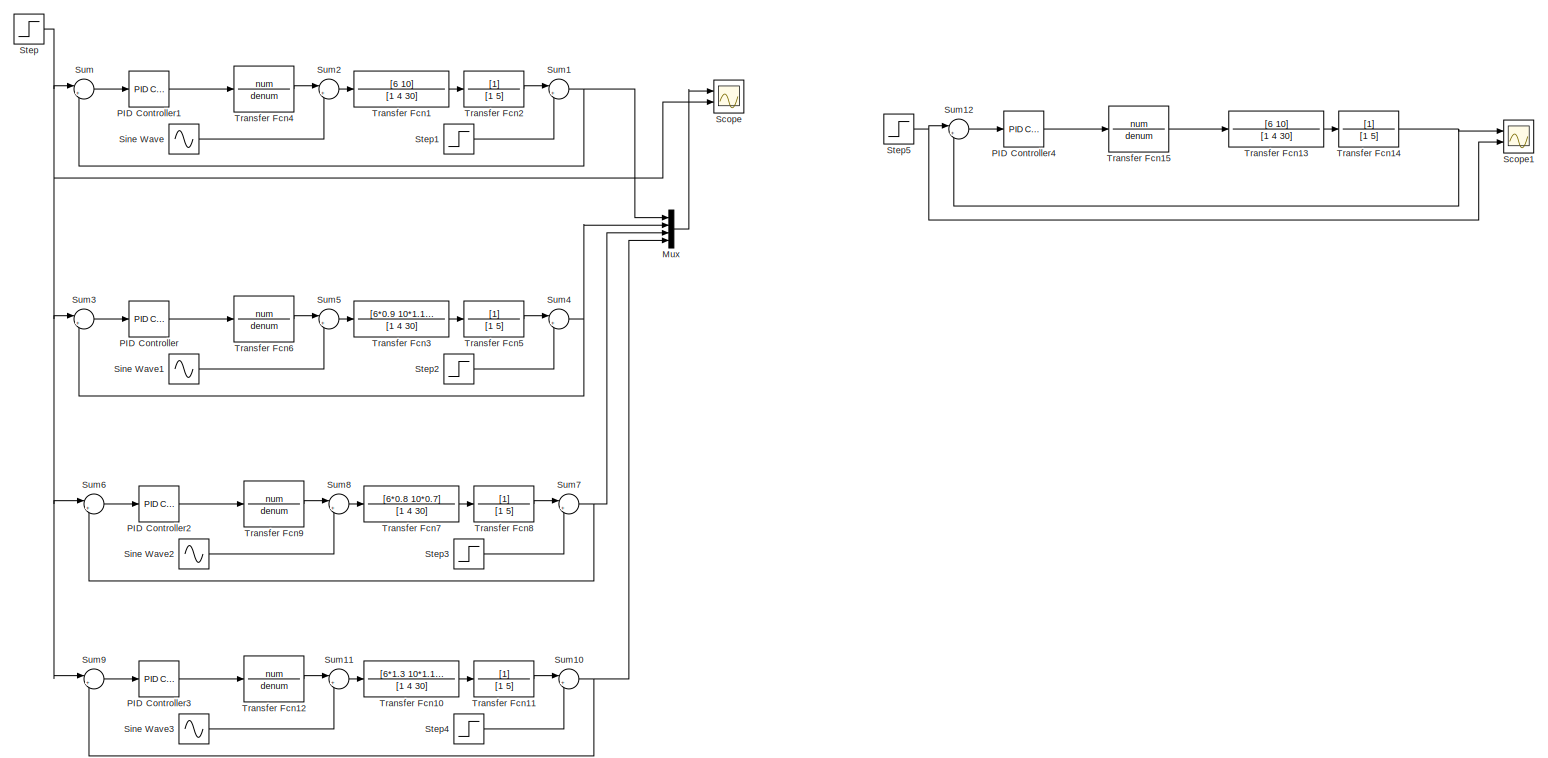
[diagram: root canvas - part 1/1, most of the canvas]
MODEL slx_10db6c4a6d08
KIND model
CONFIG AbsTol = auto
CONFIG EnableMultiTasking = off
CONFIG FixedStep = 1e-3
CONFIG MaxStep = auto
CONFIG MinStep = auto
CONFIG RelTol = 1e-3
CONFIG SampleTimeConstraint = Unconstrained
CONFIG SolverName = VariableStepAuto
CONFIG StartTime = 0.0
CONFIG StopTime = 5
BLOCK [Mux] Mux
  DisplayOption = bar
  Ports = [4, 1]
BLOCK [Reference] PID Controller  REF=slpidlib/PID Controller
  Ports = [1, 1]
  SourceBlock = slpidlib/PID Controller
  SourceProductBaseCode = SL
  SourceType = PID 1dof
BLOCK [Reference] PID Controller1  REF=slpidlib/PID Controller
  Ports = [1, 1]
  SourceBlock = slpidlib/PID Controller
  SourceProductBaseCode = SL
  SourceType = PID 1dof
BLOCK [Reference] PID Controller2  REF=slpidlib/PID Controller
  Ports = [1, 1]
  SourceBlock = slpidlib/PID Controller
  SourceProductBaseCode = SL
  SourceType = PID 1dof
BLOCK [Reference] PID Controller3  REF=slpidlib/PID Controller
  Ports = [1, 1]
  SourceBlock = slpidlib/PID Controller
  SourceProductBaseCode = SL
  SourceType = PID 1dof
BLOCK [Reference] PID Controller4  REF=slpidlib/PID Controller
  Ports = [1, 1]
  SourceBlock = slpidlib/PID Controller
  SourceProductBaseCode = SL
  SourceType = PID 1dof
BLOCK [Scope] Scope
  Floating = off
  NumInputPorts = 2
  Ports = [2]
  ScopeSpecificationString = Simulink.scopes.TimeScopeBlockCfg('CurrentConfiguration', extmgr.ConfigurationSet(extmgr.Configuration('Core','General UI',true,'FigureColor',[1 1 1]),extmgr.Configuration('Core','Source UI',true),extmgr.Configuration('Sources','WiredSimulink',true),extmgr.Configuration('Visuals','Time Domain',true,'SerializedDisplays',{struct('MinYLimReal','-0.0625','MaxYLimReal','0.5625','YLabelReal','','MinYLim...<+1908ch>
BLOCK [Scope] Scope1
  Floating = off
  NumInputPorts = 2
  Ports = [2]
  ScopeSpecificationString = Simulink.scopes.TimeScopeBlockCfg('CurrentConfiguration', extmgr.ConfigurationSet(extmgr.Configuration('Core','General UI',true,'FigureColor',[1 1 1]),extmgr.Configuration('Core','Source UI',true),extmgr.Configuration('Sources','WiredSimulink',true,'DataLoggingVariableName','ScopeData1'),extmgr.Configuration('Visuals','Time Domain',true,'SerializedDisplays',{struct('MinYLimReal','-0.06288','MaxYLi...<+1942ch>
BLOCK [Sin] Sine Wave
  Amplitude = 0.1
  Frequency = 0.5
  Ports = [0, 1]
  SampleTime = 0
BLOCK [Sin] Sine Wave1
  Amplitude = 0.1
  Frequency = 0.5
  Ports = [0, 1]
  SampleTime = 0
BLOCK [Sin] Sine Wave2
  Amplitude = 0.1
  Frequency = 0.5
  Ports = [0, 1]
  SampleTime = 0
BLOCK [Sin] Sine Wave3
  Amplitude = 0.1
  Frequency = 0.5
  Ports = [0, 1]
  SampleTime = 0
BLOCK [Step] Step
  After = 0.5
  SampleTime = 0
  Time = 0
BLOCK [Step] Step1
  After = v
  SampleTime = 0
  Time = 0
BLOCK [Step] Step2
  After = v
  SampleTime = 0
  Time = 0
BLOCK [Step] Step3
  After = v
  SampleTime = 0
  Time = 0
BLOCK [Step] Step4
  After = v
  SampleTime = 0
  Time = 0
BLOCK [Step] Step5
  After = 0.5
  SampleTime = 0
  Time = 0
BLOCK [Sum] Sum
  Inputs = |+-
  Ports = [2, 1]
BLOCK [Sum] Sum1
  Inputs = |++
  Ports = [2, 1]
BLOCK [Sum] Sum10
  Inputs = |++
  Ports = [2, 1]
BLOCK [Sum] Sum11
  Inputs = |++
  NameLocation = top
  Ports = [2, 1]
BLOCK [Sum] Sum12
  Inputs = |+-
  Ports = [2, 1]
BLOCK [Sum] Sum2
  Inputs = |++
  NameLocation = top
  Ports = [2, 1]
BLOCK [Sum] Sum3
  Inputs = |+-
  Ports = [2, 1]
BLOCK [Sum] Sum4
  Inputs = |++
  Ports = [2, 1]
BLOCK [Sum] Sum5
  Inputs = |++
  NameLocation = top
  Ports = [2, 1]
BLOCK [Sum] Sum6
  Inputs = |+-
  Ports = [2, 1]
BLOCK [Sum] Sum7
  Inputs = |++
  Ports = [2, 1]
BLOCK [Sum] Sum8
  Inputs = |++
  NameLocation = top
  Ports = [2, 1]
BLOCK [Sum] Sum9
  Inputs = |+-
  Ports = [2, 1]
BLOCK [TransferFcn] Transfer Fcn1
  Denominator = [1 4 30]
  Numerator = [6 10]
BLOCK [TransferFcn] Transfer Fcn10
  Denominator = [1 4 30]
  Numerator = [6*1.3 10*1.15]
BLOCK [TransferFcn] Transfer Fcn11
  Denominator = [1 5]
BLOCK [TransferFcn] Transfer Fcn12
  Denominator = denum
  Numerator = num
BLOCK [TransferFcn] Transfer Fcn13
  Denominator = [1 4 30]
  Numerator = [6 10]
BLOCK [TransferFcn] Transfer Fcn14
  Denominator = [1 5]
BLOCK [TransferFcn] Transfer Fcn15
  Denominator = denum
  Numerator = num
BLOCK [TransferFcn] Transfer Fcn2
  Denominator = [1 5]
BLOCK [TransferFcn] Transfer Fcn3
  Denominator = [1 4 30]
  Numerator = [6*0.9 10*1.14]
BLOCK [TransferFcn] Transfer Fcn4
  Denominator = denum
  Numerator = num
BLOCK [TransferFcn] Transfer Fcn5
  Denominator = [1 5]
BLOCK [TransferFcn] Transfer Fcn6
  Denominator = denum
  Numerator = num
BLOCK [TransferFcn] Transfer Fcn7
  Denominator = [1 4 30]
  Numerator = [6*0.8 10*0.7]
BLOCK [TransferFcn] Transfer Fcn8
  Denominator = [1 5]
BLOCK [TransferFcn] Transfer Fcn9
  Denominator = denum
  Numerator = num
LINE Mux:1 -> Scope:1
LINE PID Controller1:1 -> Transfer Fcn4:1
LINE PID Controller2:1 -> Transfer Fcn9:1
LINE PID Controller3:1 -> Transfer Fcn12:1
LINE PID Controller4:1 -> Transfer Fcn15:1
LINE PID Controller:1 -> Transfer Fcn6:1
LINE Sine Wave1:1 -> Sum5:2
LINE Sine Wave2:1 -> Sum8:2
LINE Sine Wave3:1 -> Sum11:2
LINE Sine Wave:1 -> Sum2:2
LINE Step1:1 -> Sum1:2
LINE Step2:1 -> Sum4:2
LINE Step3:1 -> Sum7:2
LINE Step4:1 -> Sum10:2
NET Step5:1 -> Scope1:2, Sum12:1
NET Step:1 -> Scope:2, Sum3:1, Sum6:1, Sum9:1, Sum:1
NET Sum10:1 -> Mux:4, Sum9:2
LINE Sum11:1 -> Transfer Fcn10:1
LINE Sum12:1 -> PID Controller4:1
NET Sum1:1 -> Mux:1, Sum:2
LINE Sum2:1 -> Transfer Fcn1:1
LINE Sum3:1 -> PID Controller:1
NET Sum4:1 -> Mux:2, Sum3:2
LINE Sum5:1 -> Transfer Fcn3:1
LINE Sum6:1 -> PID Controller2:1
NET Sum7:1 -> Mux:3, Sum6:2
LINE Sum8:1 -> Transfer Fcn7:1
LINE Sum9:1 -> PID Controller3:1
LINE Sum:1 -> PID Controller1:1
LINE Transfer Fcn10:1 -> Transfer Fcn11:1
LINE Transfer Fcn11:1 -> Sum10:1
LINE Transfer Fcn12:1 -> Sum11:1
LINE Transfer Fcn13:1 -> Transfer Fcn14:1
NET Transfer Fcn14:1 -> Scope1:1, Sum12:2
LINE Transfer Fcn15:1 -> Transfer Fcn13:1
LINE Transfer Fcn1:1 -> Transfer Fcn2:1
LINE Transfer Fcn2:1 -> Sum1:1
LINE Transfer Fcn3:1 -> Transfer Fcn5:1
LINE Transfer Fcn4:1 -> Sum2:1
LINE Transfer Fcn5:1 -> Sum4:1
LINE Transfer Fcn6:1 -> Sum5:1
LINE Transfer Fcn7:1 -> Transfer Fcn8:1
LINE Transfer Fcn8:1 -> Sum7:1
LINE Transfer Fcn9:1 -> Sum8:1
note: NET lines group one-source signal fan-out (src -> all destinations, sorted); 1:1 wires keep LINE
